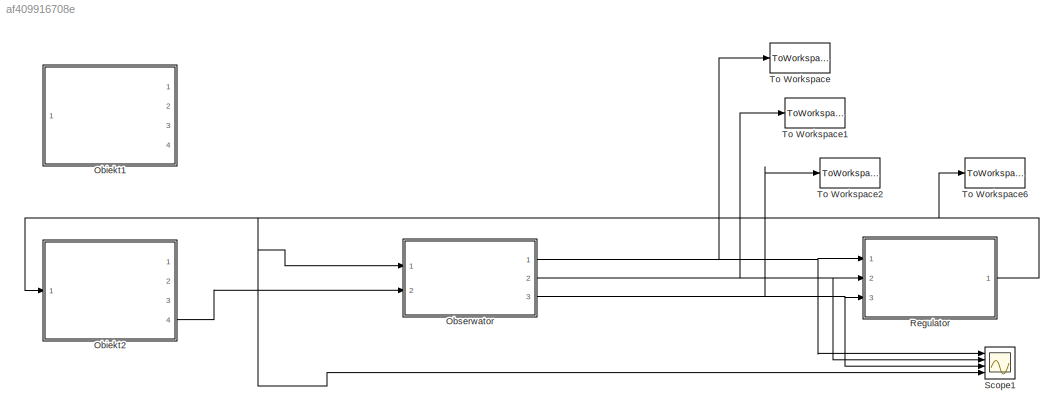
MODEL slx_af409916708e
KIND model
CONFIG AbsTol = auto
CONFIG EnableMultiTasking = off
CONFIG FixedStep = auto
CONFIG MaxStep = auto
CONFIG MinStep = auto
CONFIG RelTol = 1e-3
CONFIG SampleTimeConstraint = Unconstrained
CONFIG Solver = VariableStepAuto
CONFIG SolverName = VariableStepAuto
CONFIG StartTime = 0.0
CONFIG StopTime = 10
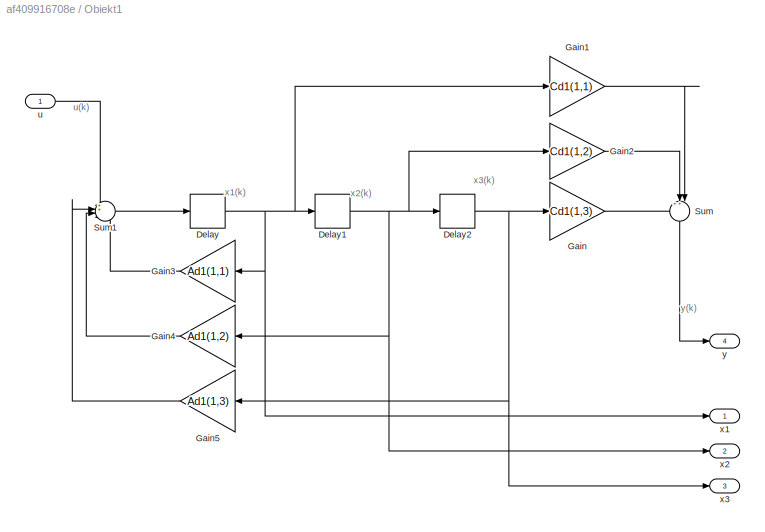
BLOCK [SubSystem] Obiekt1 
  Ports = [1, 4]
  RequestExecContextInheritance = off
  Variant = off
BLOCK [Delay] Obiekt1 /Delay
  DelayLength = 1
  InitialCondition = X0(1,1)
  InputPortMap = u0
  Ports = [1, 1]
  SampleTime = T
BLOCK [Delay] Obiekt1 /Delay1
  DelayLength = 1
  InitialCondition = X0(2,1)
  InputPortMap = u0
  Ports = [1, 1]
  SampleTime = T
BLOCK [Delay] Obiekt1 /Delay2
  DelayLength = 1
  InitialCondition = X0(3,1)
  InputPortMap = u0
  Ports = [1, 1]
  SampleTime = T
BLOCK [Gain] Obiekt1 /Gain
  Gain = Cd1(1,3)
  OutDataTypeStr = Inherit: Inherit via internal rule
  ParamDataTypeStr = Inherit: Inherit via internal rule
  SaturateOnIntegerOverflow = off
BLOCK [Gain] Obiekt1 /Gain1
  Gain = Cd1(1,1)
  OutDataTypeStr = Inherit: Inherit via internal rule
  ParamDataTypeStr = Inherit: Inherit via internal rule
  SaturateOnIntegerOverflow = off
BLOCK [Gain] Obiekt1 /Gain2
  Gain = Cd1(1,2)
  OutDataTypeStr = Inherit: Inherit via internal rule
  ParamDataTypeStr = Inherit: Inherit via internal rule
  SaturateOnIntegerOverflow = off
BLOCK [Gain] Obiekt1 /Gain3
  Gain = Ad1(1,1)
  OutDataTypeStr = Inherit: Inherit via internal rule
  ParamDataTypeStr = Inherit: Inherit via internal rule
  SaturateOnIntegerOverflow = off
BLOCK [Gain] Obiekt1 /Gain4
  Gain = Ad1(1,2)
  OutDataTypeStr = Inherit: Inherit via internal rule
  ParamDataTypeStr = Inherit: Inherit via internal rule
  SaturateOnIntegerOverflow = off
BLOCK [Gain] Obiekt1 /Gain5
  Gain = Ad1(1,3)
  OutDataTypeStr = Inherit: Inherit via internal rule
  ParamDataTypeStr = Inherit: Inherit via internal rule
  SaturateOnIntegerOverflow = off
BLOCK [Sum] Obiekt1 /Sum
  IconShape = round
  InputSameDT = off
  Inputs = 3
  OutDataTypeStr = Inherit: Inherit via internal rule
  Ports = [3, 1]
  SaturateOnIntegerOverflow = off
BLOCK [Sum] Obiekt1 /Sum1
  IconShape = round
  InputSameDT = off
  Inputs = 4
  OutDataTypeStr = Inherit: Inherit via internal rule
  Ports = [4, 1]
  SaturateOnIntegerOverflow = off
BLOCK [Inport] Obiekt1 /u
  IconDisplay = Port number
BLOCK [Outport] Obiekt1 /x1
  IconDisplay = Port number
BLOCK [Outport] Obiekt1 /x2
  IconDisplay = Port number
  Port = 2
BLOCK [Outport] Obiekt1 /x3
  IconDisplay = Port number
  Port = 3
BLOCK [Outport] Obiekt1 /y
  IconDisplay = Port number
  Port = 4
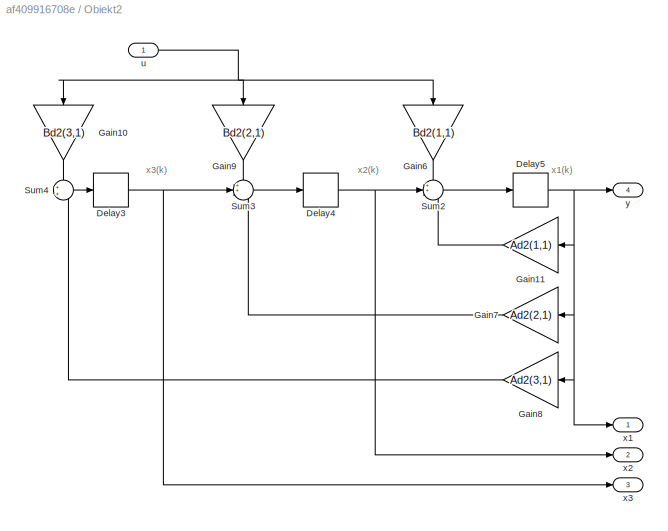
BLOCK [SubSystem] Obiekt2
  Ports = [1, 4]
  RequestExecContextInheritance = off
  Variant = off
BLOCK [Delay] Obiekt2/Delay3
  DelayLength = 1
  InitialCondition = X0(3,1)
  InputPortMap = u0
  Ports = [1, 1]
  SampleTime = T
BLOCK [Delay] Obiekt2/Delay4
  DelayLength = 1
  InitialCondition = X0(2,1)
  InputPortMap = u0
  Ports = [1, 1]
  SampleTime = T
BLOCK [Delay] Obiekt2/Delay5
  DelayLength = 1
  InitialCondition = X0(1,1)
  InputPortMap = u0
  Ports = [1, 1]
  SampleTime = T
BLOCK [Gain] Obiekt2/Gain10
  Gain = Bd2(3,1)
  OutDataTypeStr = Inherit: Inherit via internal rule
  ParamDataTypeStr = Inherit: Inherit via internal rule
  SaturateOnIntegerOverflow = off
BLOCK [Gain] Obiekt2/Gain11
  Gain = Ad2(1,1)
  OutDataTypeStr = Inherit: Inherit via internal rule
  ParamDataTypeStr = Inherit: Inherit via internal rule
  SaturateOnIntegerOverflow = off
BLOCK [Gain] Obiekt2/Gain6
  Gain = Bd2(1,1)
  OutDataTypeStr = Inherit: Inherit via internal rule
  ParamDataTypeStr = Inherit: Inherit via internal rule
  SaturateOnIntegerOverflow = off
BLOCK [Gain] Obiekt2/Gain7
  Gain = Ad2(2,1)
  OutDataTypeStr = Inherit: Inherit via internal rule
  ParamDataTypeStr = Inherit: Inherit via internal rule
  SaturateOnIntegerOverflow = off
BLOCK [Gain] Obiekt2/Gain8
  Gain = Ad2(3,1)
  OutDataTypeStr = Inherit: Inherit via internal rule
  ParamDataTypeStr = Inherit: Inherit via internal rule
  SaturateOnIntegerOverflow = off
BLOCK [Gain] Obiekt2/Gain9
  Gain = Bd2(2,1)
  OutDataTypeStr = Inherit: Inherit via internal rule
  ParamDataTypeStr = Inherit: Inherit via internal rule
  SaturateOnIntegerOverflow = off
BLOCK [Sum] Obiekt2/Sum2
  IconShape = round
  InputSameDT = off
  Inputs = 3
  OutDataTypeStr = Inherit: Inherit via internal rule
  Ports = [3, 1]
  SaturateOnIntegerOverflow = off
BLOCK [Sum] Obiekt2/Sum3
  IconShape = round
  InputSameDT = off
  Inputs = 3
  OutDataTypeStr = Inherit: Inherit via internal rule
  Ports = [3, 1]
  SaturateOnIntegerOverflow = off
BLOCK [Sum] Obiekt2/Sum4
  IconShape = round
  InputSameDT = off
  Inputs = 2
  OutDataTypeStr = Inherit: Inherit via internal rule
  Ports = [2, 1]
  SaturateOnIntegerOverflow = off
BLOCK [Inport] Obiekt2/u
  IconDisplay = Port number
BLOCK [Outport] Obiekt2/x1
  IconDisplay = Port number
BLOCK [Outport] Obiekt2/x2
  IconDisplay = Port number
  Port = 2
BLOCK [Outport] Obiekt2/x3
  IconDisplay = Port number
  Port = 3
BLOCK [Outport] Obiekt2/y
  IconDisplay = Port number
  Port = 4
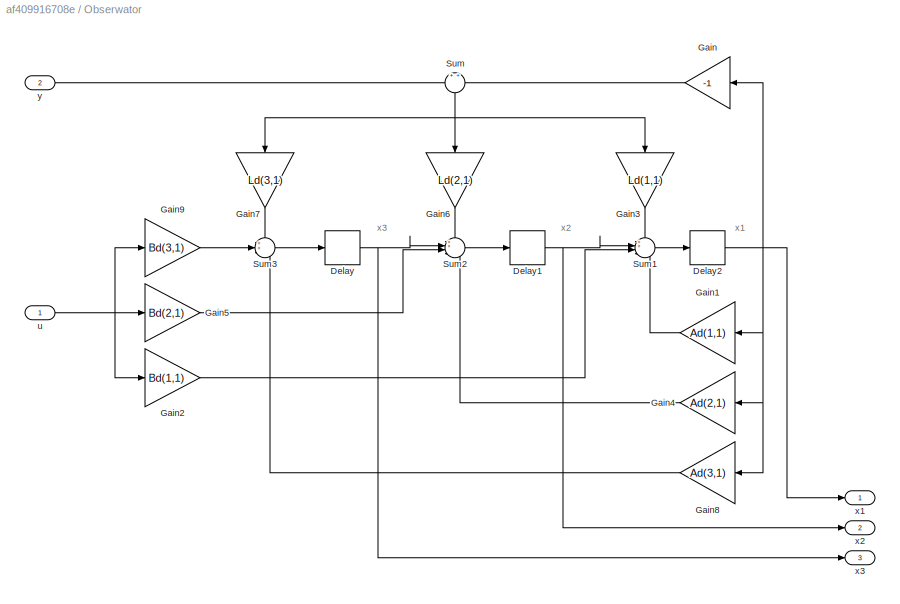
BLOCK [SubSystem] Obserwator
  Ports = [2, 3]
  RequestExecContextInheritance = off
  Variant = off
BLOCK [Delay] Obserwator/Delay
  DelayLength = 1
  InitialCondition = 0
  InputPortMap = u0
  Ports = [1, 1]
  SampleTime = T
BLOCK [Delay] Obserwator/Delay1
  DelayLength = 1
  InitialCondition = 0
  InputPortMap = u0
  Ports = [1, 1]
  SampleTime = T
BLOCK [Delay] Obserwator/Delay2
  DelayLength = 1
  InitialCondition = 0
  InputPortMap = u0
  Ports = [1, 1]
  SampleTime = T
BLOCK [Gain] Obserwator/Gain
  Gain = -1
  OutDataTypeStr = Inherit: Inherit via internal rule
  ParamDataTypeStr = Inherit: Inherit via internal rule
  SaturateOnIntegerOverflow = off
BLOCK [Gain] Obserwator/Gain1
  Gain = Ad(1,1)
  OutDataTypeStr = Inherit: Inherit via internal rule
  ParamDataTypeStr = Inherit: Inherit via internal rule
  SaturateOnIntegerOverflow = off
BLOCK [Gain] Obserwator/Gain2
  Gain = Bd(1,1)
  OutDataTypeStr = Inherit: Inherit via internal rule
  ParamDataTypeStr = Inherit: Inherit via internal rule
  SaturateOnIntegerOverflow = off
BLOCK [Gain] Obserwator/Gain3
  Gain = Ld(1,1)
  OutDataTypeStr = Inherit: Inherit via internal rule
  ParamDataTypeStr = Inherit: Inherit via internal rule
  SaturateOnIntegerOverflow = off
BLOCK [Gain] Obserwator/Gain4
  Gain = Ad(2,1)
  OutDataTypeStr = Inherit: Inherit via internal rule
  ParamDataTypeStr = Inherit: Inherit via internal rule
  SaturateOnIntegerOverflow = off
BLOCK [Gain] Obserwator/Gain5
  Gain = Bd(2,1)
  OutDataTypeStr = Inherit: Inherit via internal rule
  ParamDataTypeStr = Inherit: Inherit via internal rule
  SaturateOnIntegerOverflow = off
BLOCK [Gain] Obserwator/Gain6
  Gain = Ld(2,1)
  OutDataTypeStr = Inherit: Inherit via internal rule
  ParamDataTypeStr = Inherit: Inherit via internal rule
  SaturateOnIntegerOverflow = off
BLOCK [Gain] Obserwator/Gain7
  Gain = Ld(3,1)
  OutDataTypeStr = Inherit: Inherit via internal rule
  ParamDataTypeStr = Inherit: Inherit via internal rule
  SaturateOnIntegerOverflow = off
BLOCK [Gain] Obserwator/Gain8
  Gain = Ad(3,1)
  OutDataTypeStr = Inherit: Inherit via internal rule
  ParamDataTypeStr = Inherit: Inherit via internal rule
  SaturateOnIntegerOverflow = off
BLOCK [Gain] Obserwator/Gain9
  Gain = Bd(3,1)
  OutDataTypeStr = Inherit: Inherit via internal rule
  ParamDataTypeStr = Inherit: Inherit via internal rule
  SaturateOnIntegerOverflow = off
BLOCK [Sum] Obserwator/Sum
  IconShape = round
  InputSameDT = off
  Inputs = 2
  OutDataTypeStr = Inherit: Inherit via internal rule
  Ports = [2, 1]
  SaturateOnIntegerOverflow = off
BLOCK [Sum] Obserwator/Sum1
  IconShape = round
  InputSameDT = off
  Inputs = 4
  OutDataTypeStr = Inherit: Inherit via internal rule
  Ports = [4, 1]
  SaturateOnIntegerOverflow = off
BLOCK [Sum] Obserwator/Sum2
  IconShape = round
  InputSameDT = off
  Inputs = 4
  OutDataTypeStr = Inherit: Inherit via internal rule
  Ports = [4, 1]
  SaturateOnIntegerOverflow = off
BLOCK [Sum] Obserwator/Sum3
  IconShape = round
  InputSameDT = off
  Inputs = 3
  OutDataTypeStr = Inherit: Inherit via internal rule
  Ports = [3, 1]
  SaturateOnIntegerOverflow = off
BLOCK [Inport] Obserwator/u
  IconDisplay = Port number
BLOCK [Outport] Obserwator/x1
  IconDisplay = Port number
BLOCK [Outport] Obserwator/x2
  IconDisplay = Port number
  Port = 2
BLOCK [Outport] Obserwator/x3
  IconDisplay = Port number
  Port = 3
BLOCK [Inport] Obserwator/y
  IconDisplay = Port number
  Port = 2
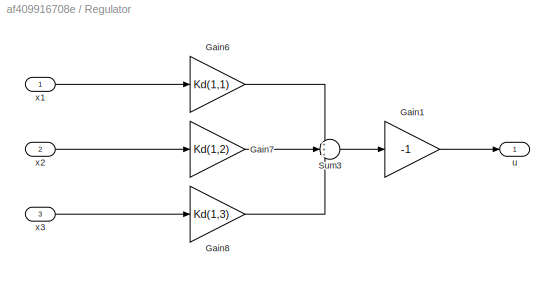
BLOCK [SubSystem] Regulator
  Ports = [3, 1]
  RequestExecContextInheritance = off
  Variant = off
BLOCK [Gain] Regulator/Gain1
  Gain = -1
  OutDataTypeStr = Inherit: Inherit via internal rule
  ParamDataTypeStr = Inherit: Inherit via internal rule
  SaturateOnIntegerOverflow = off
BLOCK [Gain] Regulator/Gain6
  Gain = Kd(1,1)
  OutDataTypeStr = Inherit: Inherit via internal rule
  ParamDataTypeStr = Inherit: Inherit via internal rule
  SaturateOnIntegerOverflow = off
BLOCK [Gain] Regulator/Gain7
  Gain = Kd(1,2)
  OutDataTypeStr = Inherit: Inherit via internal rule
  ParamDataTypeStr = Inherit: Inherit via internal rule
  SaturateOnIntegerOverflow = off
BLOCK [Gain] Regulator/Gain8
  Gain = Kd(1,3)
  OutDataTypeStr = Inherit: Inherit via internal rule
  ParamDataTypeStr = Inherit: Inherit via internal rule
  SaturateOnIntegerOverflow = off
BLOCK [Sum] Regulator/Sum3
  IconShape = round
  InputSameDT = off
  Inputs = +++
  OutDataTypeStr = Inherit: Inherit via internal rule
  Ports = [3, 1]
  SaturateOnIntegerOverflow = off
BLOCK [Outport] Regulator/u
  IconDisplay = Port number
BLOCK [Inport] Regulator/x1
  IconDisplay = Port number
BLOCK [Inport] Regulator/x2
  IconDisplay = Port number
  Port = 2
BLOCK [Inport] Regulator/x3
  IconDisplay = Port number
  Port = 3
BLOCK [Scope] Scope1
  NumInputPorts = 4
  Ports = [4]
  ScopeSpecificationString = Simulink.scopes.TimeScopeBlockCfg('CurrentConfiguration', extmgr.ConfigurationSet(extmgr.Configuration('Core','General UI',true),extmgr.Configuration('Core','Source UI',true),extmgr.Configuration('Sources','WiredSimulink',true,'DataLoggingVariableName','ScopeData1'),extmgr.Configuration('Visuals','Time Domain',true,'SerializedDisplays',{struct('MinYLimReal','-99.92831','MaxYLimReal','27.27926','YL...<+1446ch>
BLOCK [ToWorkspace] To Workspace
  FixptAsFi = on
  MaxDataPoints = inf
  Ports = [1]
  SampleTime = -1
  Save2DSignal = 3-D array (concatenate along third dimension)
  SaveFormat = Timeseries
  VariableName = x1
BLOCK [ToWorkspace] To Workspace1
  FixptAsFi = on
  MaxDataPoints = inf
  Ports = [1]
  SampleTime = -1
  Save2DSignal = 3-D array (concatenate along third dimension)
  SaveFormat = Timeseries
  VariableName = x2
BLOCK [ToWorkspace] To Workspace2
  FixptAsFi = on
  MaxDataPoints = inf
  Ports = [1]
  SampleTime = -1
  Save2DSignal = 3-D array (concatenate along third dimension)
  SaveFormat = Timeseries
  VariableName = x3
BLOCK [ToWorkspace] To Workspace6
  FixptAsFi = on
  MaxDataPoints = inf
  Ports = [1]
  SampleTime = -1
  Save2DSignal = 3-D array (concatenate along third dimension)
  SaveFormat = Timeseries
  VariableName = u
ANNOTATION Obiekt1 : u(k)
ANNOTATION Obiekt1 : x1(k)
ANNOTATION Obiekt1 : x2(k)
ANNOTATION Obiekt1 : x3(k)
ANNOTATION Obiekt1 : y(k)
ANNOTATION Obiekt2: x1(k)
ANNOTATION Obiekt2: x2(k)
ANNOTATION Obiekt2: x3(k)
ANNOTATION Obserwator: x1
ANNOTATION Obserwator: x2
ANNOTATION Obserwator: x3
NET Obiekt1 /Delay1:1 -> Obiekt1 /Delay2:1, Obiekt1 /Gain2:1, Obiekt1 /Gain4:1, Obiekt1 /x2:1
NET Obiekt1 /Delay2:1 -> Obiekt1 /Gain5:1, Obiekt1 /Gain:1, Obiekt1 /x3:1
NET Obiekt1 /Delay:1 -> Obiekt1 /Delay1:1, Obiekt1 /Gain1:1, Obiekt1 /Gain3:1, Obiekt1 /x1:1
LINE Obiekt1 /Gain1:1 -> Obiekt1 /Sum:3
LINE Obiekt1 /Gain2:1 -> Obiekt1 /Sum:2
LINE Obiekt1 /Gain3:1 -> Obiekt1 /Sum1:4
LINE Obiekt1 /Gain4:1 -> Obiekt1 /Sum1:3
LINE Obiekt1 /Gain5:1 -> Obiekt1 /Sum1:2
LINE Obiekt1 /Gain:1 -> Obiekt1 /Sum:1
LINE Obiekt1 /Sum1:1 -> Obiekt1 /Delay:1
LINE Obiekt1 /Sum:1 -> Obiekt1 /y:1
LINE Obiekt1 /u:1 -> Obiekt1 /Sum1:1
NET Obiekt2/Delay3:1 -> Obiekt2/Sum3:2, Obiekt2/x3:1
NET Obiekt2/Delay4:1 -> Obiekt2/Sum2:2, Obiekt2/x2:1
NET Obiekt2/Delay5:1 -> Obiekt2/Gain11:1, Obiekt2/Gain7:1, Obiekt2/Gain8:1, Obiekt2/x1:1, Obiekt2/y:1
LINE Obiekt2/Gain10:1 -> Obiekt2/Sum4:1
LINE Obiekt2/Gain11:1 -> Obiekt2/Sum2:3
LINE Obiekt2/Gain6:1 -> Obiekt2/Sum2:1
LINE Obiekt2/Gain7:1 -> Obiekt2/Sum3:3
LINE Obiekt2/Gain8:1 -> Obiekt2/Sum4:2
LINE Obiekt2/Gain9:1 -> Obiekt2/Sum3:1
LINE Obiekt2/Sum2:1 -> Obiekt2/Delay5:1
LINE Obiekt2/Sum3:1 -> Obiekt2/Delay4:1
LINE Obiekt2/Sum4:1 -> Obiekt2/Delay3:1
NET Obiekt2/u:1 -> Obiekt2/Gain10:1, Obiekt2/Gain6:1, Obiekt2/Gain9:1
LINE Obiekt2:4 -> Obserwator:2
NET Obserwator/Delay1:1 -> Obserwator/Sum1:2, Obserwator/x2:1
NET Obserwator/Delay2:1 -> Obserwator/Gain1:1, Obserwator/Gain4:1, Obserwator/Gain8:1, Obserwator/Gain:1, Obserwator/x1:1
NET Obserwator/Delay:1 -> Obserwator/Sum2:2, Obserwator/x3:1
LINE Obserwator/Gain1:1 -> Obserwator/Sum1:4
LINE Obserwator/Gain2:1 -> Obserwator/Sum1:3
LINE Obserwator/Gain3:1 -> Obserwator/Sum1:1
LINE Obserwator/Gain4:1 -> Obserwator/Sum2:4
LINE Obserwator/Gain5:1 -> Obserwator/Sum2:3
LINE Obserwator/Gain6:1 -> Obserwator/Sum2:1
LINE Obserwator/Gain7:1 -> Obserwator/Sum3:1
LINE Obserwator/Gain8:1 -> Obserwator/Sum3:3
LINE Obserwator/Gain9:1 -> Obserwator/Sum3:2
LINE Obserwator/Gain:1 -> Obserwator/Sum:2
LINE Obserwator/Sum1:1 -> Obserwator/Delay2:1
LINE Obserwator/Sum2:1 -> Obserwator/Delay1:1
LINE Obserwator/Sum3:1 -> Obserwator/Delay:1
NET Obserwator/Sum:1 -> Obserwator/Gain3:1, Obserwator/Gain6:1, Obserwator/Gain7:1
NET Obserwator/u:1 -> Obserwator/Gain2:1, Obserwator/Gain5:1, Obserwator/Gain9:1
LINE Obserwator/y:1 -> Obserwator/Sum:1
NET Obserwator:1 -> Regulator:1, Scope1:1, To Workspace:1
NET Obserwator:2 -> Regulator:2, Scope1:2, To Workspace1:1
NET Obserwator:3 -> Regulator:3, Scope1:3, To Workspace2:1
LINE Regulator/Gain1:1 -> Regulator/u:1
LINE Regulator/Gain6:1 -> Regulator/Sum3:1
LINE Regulator/Gain7:1 -> Regulator/Sum3:2
LINE Regulator/Gain8:1 -> Regulator/Sum3:3
LINE Regulator/Sum3:1 -> Regulator/Gain1:1
LINE Regulator/x1:1 -> Regulator/Gain6:1
LINE Regulator/x2:1 -> Regulator/Gain7:1
LINE Regulator/x3:1 -> Regulator/Gain8:1
NET Regulator:1 -> Obiekt2:1, Obserwator:1, Scope1:4, To Workspace6:1
note: NET lines group one-source signal fan-out (src -> all destinations, sorted); 1:1 wires keep LINE
